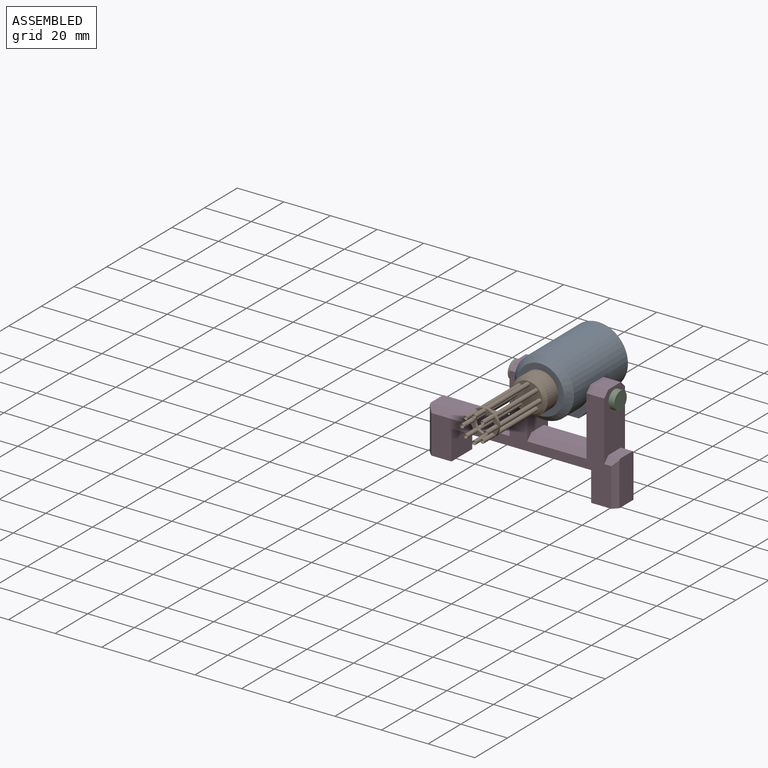
[diagram: assembled view]
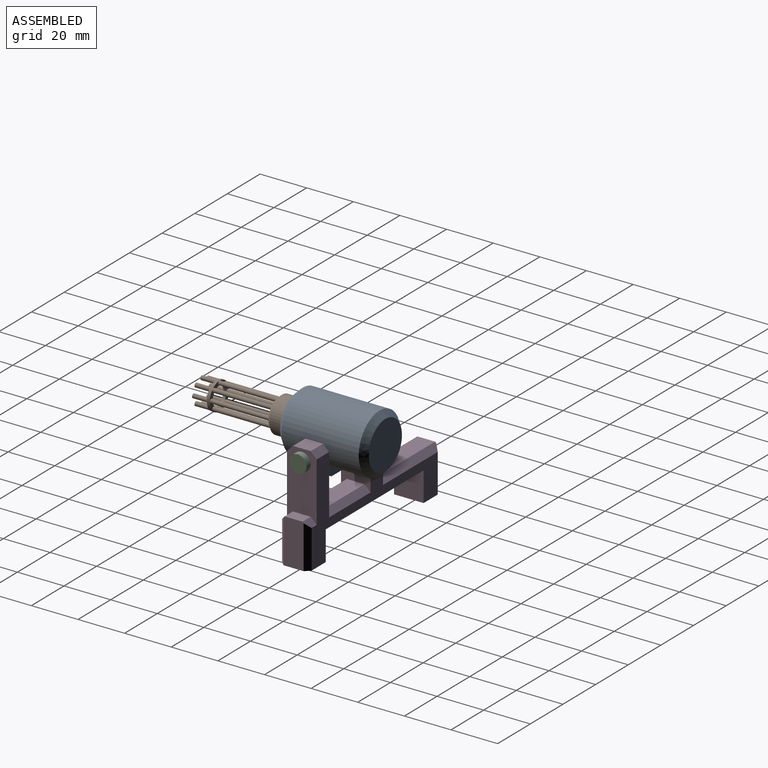
[diagram: assembled view, second angle]
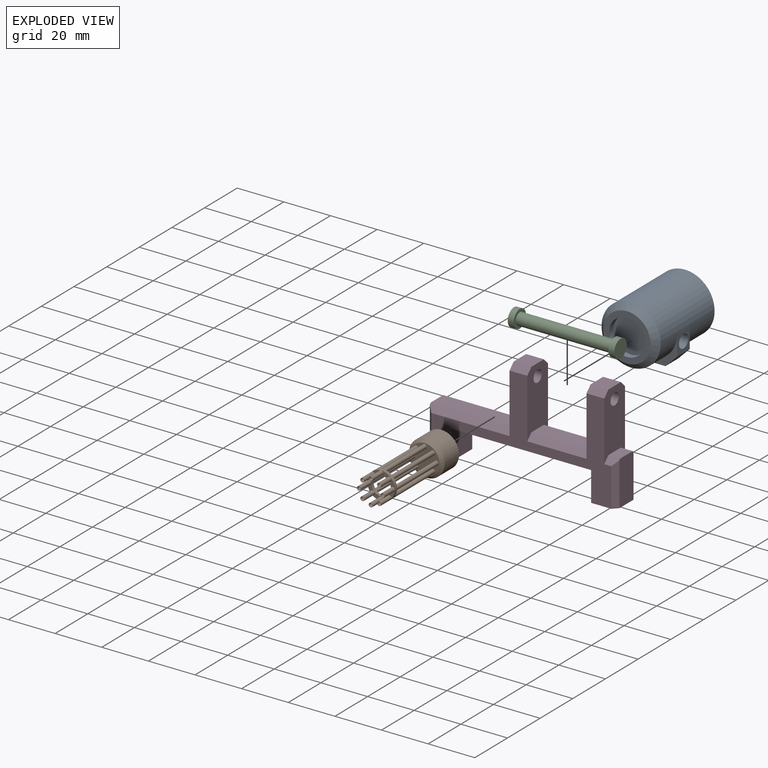
[diagram: exploded view]
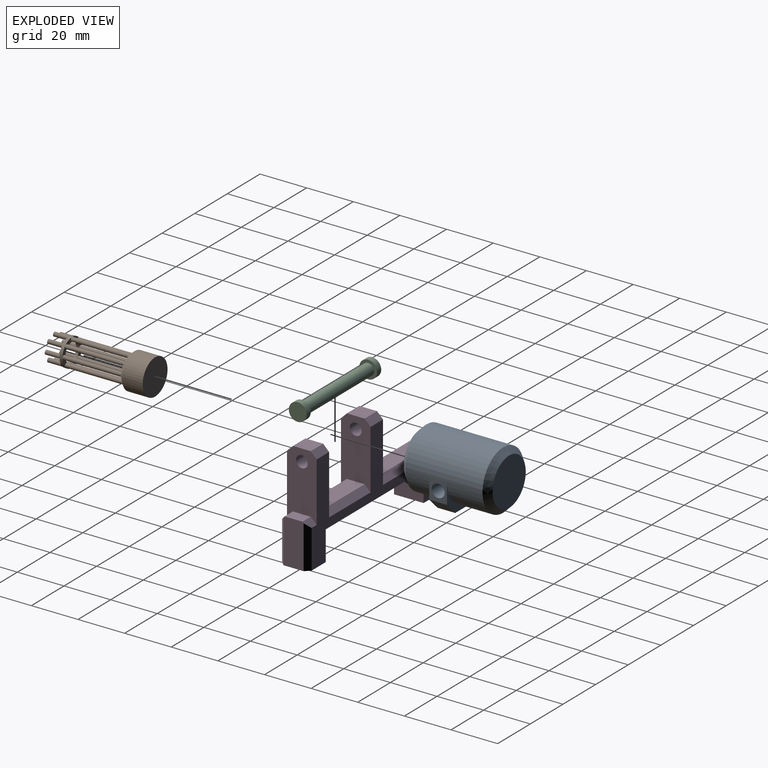
[diagram: exploded view, second angle]
ASSEMBLY  parts=4 mates=3
PART A: 15 faces, bbox 25.4x38.1x26.7 mm
  f0: cylinder r=12.7mm len=33.02mm, axis (0,1,0), area 2330.9mm2, adj f3,f4,f7,f8,f9,f10
  f1: plane 20.32x20.32mm, normal (0,-1,0), area 324.3mm2, adj f4
  f2: plane 20.32x20.32mm, normal (0,1,0), area 141.9mm2, adj f3,f5
  f3: cone r=12.7mm half-angle=45deg, axis (0,-1,0), area 258mm2, adj f0,f2
  f4: cone r=10.16mm half-angle=45deg, axis (0,1,0), area 258mm2, adj f0,f1
  f5: cylinder r=7.62mm len=15.24mm, axis (0,1,0), area 121.6mm2, adj f2,f6
  f6: plane 15.24x15.24mm, normal (0,1,0), area 182.4mm2, adj f5
  f7: plane 25.4x13.97mm, normal (0,1,0), area 75.7mm2, adj f0,f8,f10,f11,f12,f13
  f8: plane 8.89x7.62mm, normal (-1,0,0), area 43.2mm2, adj f0,f7,f9,f13,f14
  f9: plane 25.4x13.97mm, normal (0,-1,0), area 75.7mm2, adj f0,f8,f10,f11,f12,f13
  f10: plane 8.89x7.62mm, normal (1,0,0), area 43.2mm2, adj f0,f7,f9,f12,f14
  f11: plane 15.24x7.62mm, normal (0,0,-1), area 116.1mm2, adj f7,f9,f12,f13
  f12: plane 7.62x5.08mm, normal (0.71,0,-0.71), area 54.7mm2, adj f7,f9,f10,f11
  f13: plane 7.62x5.08mm, normal (-0.71,0,-0.71), area 54.7mm2, adj f7,f8,f9,f11
  f14: cylinder r=2.79mm len=25.4mm, axis (1,0,0), area 445.9mm2, adj f8,f10
PART B: 83 faces, bbox 15.2x43.2x15.2 mm
  f0: plane 12.7x12.7mm, normal (0,-1,0), area 106.8mm2, adj f15,f18,f48,f49,f50,f51,f52,f53
  f1: plane 4.22x3.01mm, normal (0,-1,0), area 4.6mm2, adj f19,f20,f30,f42
  f2: plane 4.22x3.01mm, normal (0,-1,0), area 4.6mm2, adj f19,f20,f27,f42
  f3: plane 4.22x3.01mm, normal (0,-1,0), area 4.6mm2, adj f19,f20,f33,f36
  f4: plane 4.22x3.01mm, normal (0,-1,0), area 4.6mm2, adj f19,f20,f27,f45
  f5: plane 4.22x3.01mm, normal (0,-1,0), area 4.6mm2, adj f19,f20,f24,f45
  f6: plane 4.22x3.01mm, normal (0,-1,0), area 4.6mm2, adj f19,f20,f24,f36
  f7: plane 4.22x3.01mm, normal (0,-1,0), area 4.6mm2, adj f19,f20,f30,f39
  f8: plane 4.22x3.01mm, normal (0,1,0), area 4.6mm2, adj f19,f20,f49,f53
  f9: plane 4.22x3.01mm, normal (0,1,0), area 4.6mm2, adj f19,f20,f48,f53
  f10: plane 4.22x3.01mm, normal (0,1,0), area 4.6mm2, adj f19,f20,f50,f51
  f11: plane 4.22x3.01mm, normal (0,1,0), area 4.6mm2, adj f19,f20,f48,f54
  f12: plane 4.22x3.01mm, normal (0,1,0), area 4.6mm2, adj f15,f19,f20,f54
  f13: plane 4.22x3.01mm, normal (0,1,0), area 4.6mm2, adj f15,f19,f20,f51
  f14: plane 4.22x3.01mm, normal (0,1,0), area 4.6mm2, adj f19,f20,f49,f52
  f15: cylinder r=0.89mm len=25.4mm, axis (0,1,0), area 141.9mm2, adj f0,f12,f13
  f16: cylinder r=7.62mm len=15.24mm, axis (0,1,0), area 425.6mm2, adj f17,f18
  f17: plane 15.24x15.24mm, normal (0,1,0), area 182.4mm2, adj f16
  f18: cone r=6.35mm half-angle=45deg, axis (0,1,0), area 78.8mm2, adj f0,f16
  f19: cylinder r=4.19mm len=8.38mm, axis (0,1,0), area 33.4mm2, adj f1,f2,f3,f4,f5,f6,f7,f8
  f20: cylinder r=5.97mm len=11.94mm, axis (0,1,0), area 47.6mm2, adj f1,f2,f3,f4,f5,f6,f7,f8
  f21: plane 4.22x3.01mm, normal (0,-1,0), area 4.6mm2, adj f19,f20,f33,f39
  f22: plane 4.22x3.01mm, normal (0,1,0), area 4.6mm2, adj f19,f20,f50,f52
  f23: plane 1.78x1.78mm, normal (0,-1,0), area 0.7mm2, adj f24,f25
  f24: cylinder r=0.89mm len=6.35mm, axis (0,1,0), area 35.5mm2, adj f5,f6,f23
  f25: cylinder r=0.76mm len=33.02mm, axis (0,-1,0), area 158.1mm2, adj f23,f26
  f26: plane 1.52x1.52mm, normal (0,-1,0), area 1.8mm2, adj f25
  f27: cylinder r=0.89mm len=6.35mm, axis (0,1,0), area 35.5mm2, adj f2,f4,f28
  f28: plane 1.78x1.78mm, normal (0,-1,0), area 0.7mm2, adj f27,f29
  f29: cylinder r=0.76mm len=6.35mm, axis (0,-1,0), area 30.4mm2, adj f28,f55
  f30: cylinder r=0.89mm len=6.35mm, axis (0,1,0), area 35.5mm2, adj f1,f7,f31
  f31: plane 1.78x1.78mm, normal (0,-1,0), area 0.7mm2, adj f30,f32
  f32: cylinder r=0.76mm len=6.35mm, axis (0,-1,0), area 30.4mm2, adj f31,f56
  f33: cylinder r=0.89mm len=6.35mm, axis (0,1,0), area 35.5mm2, adj f3,f21,f34
  f34: plane 1.78x1.78mm, normal (0,-1,0), area 0.7mm2, adj f33,f35
  f35: cylinder r=0.76mm len=6.35mm, axis (0,-1,0), area 30.4mm2, adj f34,f57
  f36: cylinder r=0.89mm len=6.35mm, axis (0,1,0), area 35.5mm2, adj f3,f6,f37
  f37: plane 1.78x1.78mm, normal (0,-1,0), area 0.7mm2, adj f36,f38
  f38: cylinder r=0.76mm len=6.35mm, axis (0,-1,0), area 30.4mm2, adj f37,f58
  f39: cylinder r=0.89mm len=6.35mm, axis (0,1,0), area 35.5mm2, adj f7,f21,f40
  f40: plane 1.78x1.78mm, normal (0,-1,0), area 0.7mm2, adj f39,f41
  f41: cylinder r=0.76mm len=6.35mm, axis (0,-1,0), area 30.4mm2, adj f40,f59
  f42: cylinder r=0.89mm len=6.35mm, axis (0,1,0), area 35.5mm2, adj f1,f2,f43
  f43: plane 1.78x1.78mm, normal (0,-1,0), area 0.7mm2, adj f42,f44
  f44: cylinder r=0.76mm len=6.35mm, axis (0,-1,0), area 30.4mm2, adj f43,f60
  f45: cylinder r=0.89mm len=6.35mm, axis (0,1,0), area 35.5mm2, adj f4,f5,f46
  f46: plane 1.78x1.78mm, normal (0,-1,0), area 0.7mm2, adj f45,f47
  f47: cylinder r=0.76mm len=6.35mm, axis (0,-1,0), area 30.4mm2, adj f46,f61
  f48: cylinder r=0.89mm len=25.4mm, axis (0,1,0), area 141.9mm2, adj f0,f9,f11
  f49: cylinder r=0.89mm len=25.4mm, axis (0,1,0), area 141.9mm2, adj f0,f8,f14
  f50: cylinder r=0.89mm len=25.4mm, axis (0,1,0), area 141.9mm2, adj f0,f10,f22
  f51: cylinder r=0.89mm len=25.4mm, axis (0,1,0), area 141.9mm2, adj f0,f10,f13
  f52: cylinder r=0.89mm len=25.4mm, axis (0,1,0), area 141.9mm2, adj f0,f14,f22
  f53: cylinder r=0.89mm len=25.4mm, axis (0,1,0), area 141.9mm2, adj f0,f8,f9
  f54: cylinder r=0.89mm len=25.4mm, axis (0,1,0), area 141.9mm2, adj f0,f11,f12
  f55: plane 1.52x1.52mm, normal (0,-1,0), area 1.8mm2, adj f29
  f56: plane 1.52x1.52mm, normal (0,-1,0), area 1.8mm2, adj f32
  f57: plane 1.52x1.52mm, normal (0,-1,0), area 1.8mm2, adj f35
  f58: plane 1.52x1.52mm, normal (0,-1,0), area 1.8mm2, adj f38
  f59: plane 1.52x1.52mm, normal (0,-1,0), area 1.8mm2, adj f41
  f60: plane 1.52x1.52mm, normal (0,-1,0), area 1.8mm2, adj f44
  f61: plane 1.52x1.52mm, normal (0,-1,0), area 1.8mm2, adj f47
  f62: cylinder r=0.76mm len=25.4mm, axis (0,-1,0), area 121.6mm2, adj f63,f64
  f63: plane 1.52x1.52mm, normal (0,1,0), area 1.8mm2, adj f62
  f64: plane 1.52x1.52mm, normal (0,-1,0), area 1.8mm2, adj f62
  f65: cylinder r=0.76mm len=25.4mm, axis (0,-1,0), area 121.6mm2, adj f66,f67
  f66: plane 1.52x1.52mm, normal (0,1,0), area 1.8mm2, adj f65
  f67: plane 1.52x1.52mm, normal (0,-1,0), area 1.8mm2, adj f65
  f68: cylinder r=0.76mm len=25.4mm, axis (0,-1,0), area 121.6mm2, adj f69,f70
  f69: plane 1.52x1.52mm, normal (0,1,0), area 1.8mm2, adj f68
  f70: plane 1.52x1.52mm, normal (0,-1,0), area 1.8mm2, adj f68
  f71: cylinder r=0.76mm len=25.4mm, axis (0,-1,0), area 121.6mm2, adj f72,f73
  f72: plane 1.52x1.52mm, normal (0,1,0), area 1.8mm2, adj f71
  f73: plane 1.52x1.52mm, normal (0,-1,0), area 1.8mm2, adj f71
  f74: cylinder r=0.76mm len=25.4mm, axis (0,-1,0), area 121.6mm2, adj f75,f76
  f75: plane 1.52x1.52mm, normal (0,1,0), area 1.8mm2, adj f74
  f76: plane 1.52x1.52mm, normal (0,-1,0), area 1.8mm2, adj f74
  f77: cylinder r=0.76mm len=25.4mm, axis (0,-1,0), area 121.6mm2, adj f78,f79
  f78: plane 1.52x1.52mm, normal (0,1,0), area 1.8mm2, adj f77
  f79: plane 1.52x1.52mm, normal (0,-1,0), area 1.8mm2, adj f77
  f80: cylinder r=0.76mm len=25.4mm, axis (0,-1,0), area 121.6mm2, adj f81,f82
  f81: plane 1.52x1.52mm, normal (0,1,0), area 1.8mm2, adj f80
  f82: plane 1.52x1.52mm, normal (0,-1,0), area 1.8mm2, adj f80
PART C: 7 faces, bbox 45.7x7.6x7.6 mm
  f0: cylinder r=2.54mm len=40.64mm, axis (-1,0,0), area 648.6mm2, adj f3,f6
  f1: cylinder r=3.81mm len=7.62mm, axis (-1,0,0), area 60.8mm2, adj f2,f3
  f2: plane 7.62x7.62mm, normal (1,0,0), area 45.6mm2, adj f1
  f3: plane 7.62x7.62mm, normal (-1,0,0), area 25.3mm2, adj f0,f1
  f4: cylinder r=3.81mm len=7.62mm, axis (1,0,0), area 60.8mm2, adj f5,f6
  f5: plane 7.62x7.62mm, normal (-1,0,0), area 45.6mm2, adj f4
  f6: plane 7.62x7.62mm, normal (1,0,0), area 25.3mm2, adj f0,f4
PART D: 34 faces, bbox 81.3x12.7x44.5 mm
  f0: plane 7.62x5.08mm, normal (0,0,1), area 38.7mm2, adj f6,f20,f26,f27
  f1: plane 25.4x7.62mm, normal (0,0,1), area 193.5mm2, adj f16,f19,f22,f23
  f2: plane 59.89x12.7mm, normal (0,0,-1), area 760.7mm2, adj f3,f5,f8,f10
  f3: plane 77.22x41.91mm, normal (0,1,0), area 901.3mm2, adj f2,f8,f9,f10,f11,f13,f14,f16
  f4: plane 19.05x8.64mm, normal (-1,0,0), area 164.3mm2, adj f7,f9,f14,f15,f24,f25
  f5: plane 77.22x41.91mm, normal (0,-1,0), area 901.3mm2, adj f2,f8,f9,f10,f11,f12,f15,f16
  f6: plane 19.05x8.64mm, normal (1,0,0), area 164.3mm2, adj f0,f11,f12,f13,f26,f27
  f7: plane 35.56x7.62mm, normal (0,0,1), area 271mm2, adj f4,f17,f24,f25
  f8: plane 12.7x12.7mm, normal (1,0,0), area 161.3mm2, adj f2,f3,f5,f9
  f9: plane 12.7x10.69mm, normal (0,0,-1), area 131.7mm2, adj f3,f4,f5,f8,f14,f15
  f10: plane 12.7x12.7mm, normal (-1,0,0), area 161.3mm2, adj f2,f3,f5,f11
  f11: plane 12.7x10.69mm, normal (0,0,-1), area 131.7mm2, adj f3,f5,f6,f10,f12,f13
  f12: plane 18.54x2.03mm, normal (0.71,-0.71,0), area 50.4mm2, adj f5,f6,f11,f26
  f13: plane 18.54x2.03mm, normal (0.71,0.71,0), area 50.4mm2, adj f3,f6,f11,f27
  f14: plane 18.54x2.03mm, normal (-0.71,0.71,0), area 50.4mm2, adj f3,f4,f9,f25
  f15: plane 18.54x2.03mm, normal (-0.71,-0.71,0), area 50.4mm2, adj f4,f5,f9,f24
  f16: plane 27.94x12.7mm, normal (1,0,0), area 302.3mm2, adj f1,f3,f5,f18,f22,f23,f28,f29
  f17: plane 27.94x12.7mm, normal (-1,0,0), area 302.3mm2, adj f3,f5,f7,f18,f24,f25,f28,f29
  f18: plane 7.62x7.62mm, normal (0,0,1), area 58.1mm2, adj f16,f17,f28,f29
  f19: plane 27.94x12.7mm, normal (-1,0,0), area 302.3mm2, adj f1,f3,f5,f21,f22,f23,f30,f31
  f20: plane 27.94x12.7mm, normal (1,0,0), area 302.3mm2, adj f0,f3,f5,f21,f26,f27,f30,f31
  f21: plane 7.62x7.62mm, normal (0,0,1), area 58.1mm2, adj f19,f20,f30,f31
  f22: plane 25.4x2.54mm, normal (0,-0.71,0.71), area 91.2mm2, adj f1,f5,f16,f19
  f23: plane 25.4x2.54mm, normal (0,0.71,0.71), area 91.2mm2, adj f1,f3,f16,f19
  f24: plane 35.56x2.54mm, normal (0,-0.71,0.71), area 124.8mm2, adj f4,f5,f7,f15,f17
  f25: plane 35.56x2.54mm, normal (0,0.71,0.71), area 124.8mm2, adj f3,f4,f7,f14,f17
  f26: plane 5.08x2.54mm, normal (0,-0.71,0.71), area 15.3mm2, adj f0,f5,f6,f12,f20
  f27: plane 5.08x2.54mm, normal (0,0.71,0.71), area 15.3mm2, adj f0,f3,f6,f13,f20
  f28: plane 7.62x2.54mm, normal (0,-0.71,0.71), area 27.4mm2, adj f5,f16,f17,f18
  f29: plane 7.62x2.54mm, normal (0,0.71,0.71), area 27.4mm2, adj f3,f16,f17,f18
  f30: plane 7.62x2.54mm, normal (0,-0.71,0.71), area 27.4mm2, adj f5,f19,f20,f21
  f31: plane 7.62x2.54mm, normal (0,0.71,0.71), area 27.4mm2, adj f3,f19,f20,f21
  f32: cylinder r=2.54mm len=7.62mm, axis (-1,0,0), area 121.6mm2, adj f19,f20
  f33: cylinder r=2.54mm len=7.62mm, axis (-1,0,0), area 121.6mm2, adj f16,f17
PLACE A rot(axis=(0,0,1),180deg) t=(-0.37,-16.54,56.92)mm
PLACE B t=(-0.37,-14,56.92)mm
PLACE C t=(-20.69,-0.03,52.47)mm
PLACE D t=(-23.35,1.3,25.8)mm
MATE fastened C.f0 <-> D.f32  axis (1,0,0) through (-20.69,-0.03,52.47)mm
MATE revolute A.f14 <-> D.f32  axis (1,0,0) through (12.33,-0.03,52.47)mm
MATE revolute A.f5 <-> B.f16  axis (0,-1,0) through (-0.37,-14,56.92)mm
